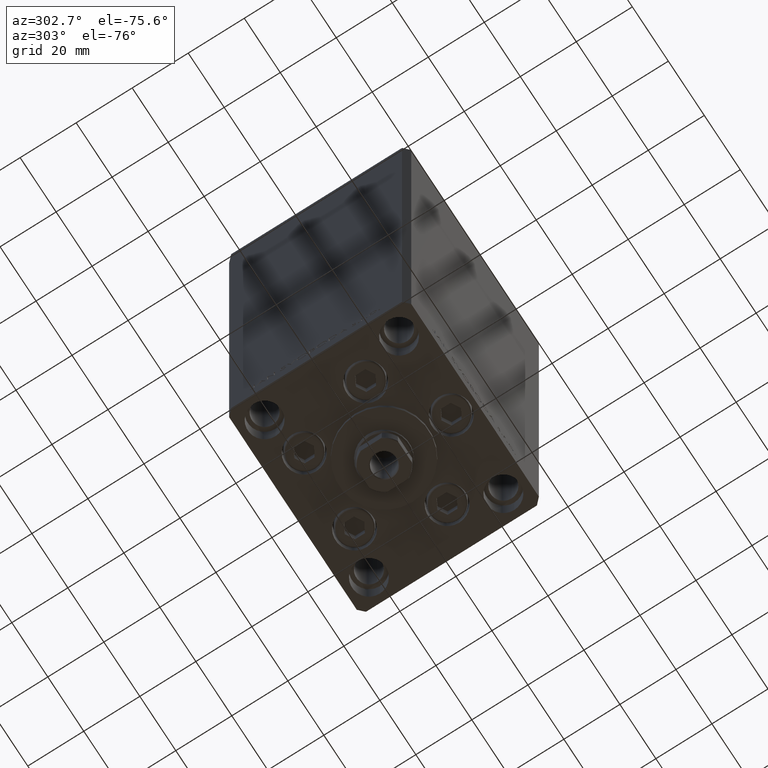
[diagram: clean part render]
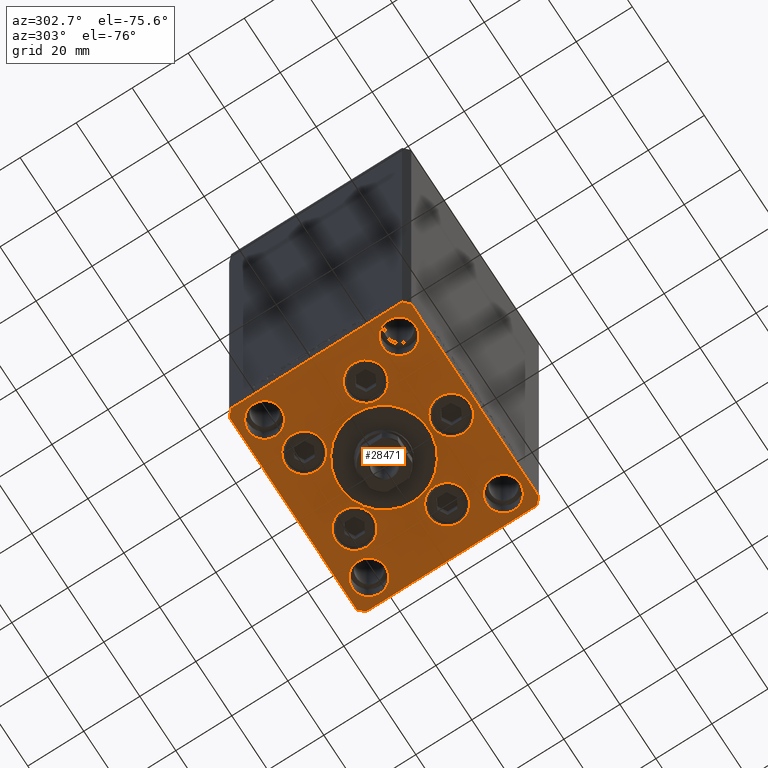
[diagram: same view with one face highlighted and labeled with its STEP entity id]
A machine part, auxiliary view. The second image highlights one B-rep face of the part: STEP entity #28471.
In plain terms, the highlighted planar face has unit normal (0, 0, -1).
Its self-contained STEP definition (entity closure, byte-faithful):
#763 = AXIS2_PLACEMENT_3D ( 'NONE', #42078, #45544, #11639 ) ;
#863 = DIRECTION ( 'NONE',  ( 0.000000000000000000, 0.000000000000000000, 1.000000000000000000 ) ) ;
#870 = AXIS2_PLACEMENT_3D ( 'NONE', #24055, #16398, #39410 ) ;
#966 = AXIS2_PLACEMENT_3D ( 'NONE', #13054, #9332, #1684 ) ;
#1092 = ORIENTED_EDGE ( 'NONE', *, *, #12996, .F. ) ;
#1151 = VERTEX_POINT ( 'NONE', #13524 ) ;
#1212 = LINE ( 'NONE', #35814, #39660 ) ;
#1327 = FACE_BOUND ( 'NONE', #42103, .T. ) ;
#1684 = DIRECTION ( 'NONE',  ( 1.000000000000000000, 0.000000000000000000, 0.000000000000000000 ) ) ;
#1714 = CIRCLE ( 'NONE', #34079, 6.750000000000000000 ) ;
#1755 = EDGE_CURVE ( 'NONE', #9913, #24667, #4765, .T. ) ;
#1759 = EDGE_CURVE ( 'NONE', #16231, #25457, #18866, .T. ) ;
#1934 = EDGE_CURVE ( 'NONE', #15269, #18590, #20439, .T. ) ;
#1941 = DIRECTION ( 'NONE',  ( -0.7071067811865524577, 0.7071067811865426878, 0.000000000000000000 ) ) ;
#1999 = CARTESIAN_POINT ( 'NONE',  ( -15.87741699796953476, -8.000000000000000000, 0.000000000000000000 ) ) ;
#2032 = VECTOR ( 'NONE', #7356, 1000.000000000000000 ) ;
#2096 = CARTESIAN_POINT ( 'NONE',  ( -22.62741699796953299, -8.000000000000000000, 0.000000000000000000 ) ) ;
#2316 = EDGE_CURVE ( 'NONE', #18590, #15269, #32342, .T. ) ;
#2408 = EDGE_CURVE ( 'NONE', #42024, #28574, #28385, .T. ) ;
#2691 = VERTEX_POINT ( 'NONE', #38414 ) ;
#2841 = VERTEX_POINT ( 'NONE', #10662 ) ;
#2854 = DIRECTION ( 'NONE',  ( 0.7071067811865463515, 0.7071067811865487940, 0.000000000000000000 ) ) ;
#2916 = EDGE_CURVE ( 'NONE', #41137, #38193, #12620, .T. ) ;
#3315 = CIRCLE ( 'NONE', #6494, 6.749999999999999112 ) ;
#3660 = ORIENTED_EDGE ( 'NONE', *, *, #2316, .F. ) ;
#3761 = ORIENTED_EDGE ( 'NONE', *, *, #20469, .F. ) ;
#4192 = CARTESIAN_POINT ( 'NONE',  ( -29.00000000000000000, 24.00000000000000711, 0.000000000000000000 ) ) ;
#4641 = CIRCLE ( 'NONE', #39430, 16.00000000000000355 ) ;
#4765 = LINE ( 'NONE', #8468, #14929 ) ;
#4918 = ORIENTED_EDGE ( 'NONE', *, *, #13699, .T. ) ;
#5135 = AXIS2_PLACEMENT_3D ( 'NONE', #23804, #28503, #13423 ) ;
#5272 = FACE_BOUND ( 'NONE', #18589, .T. ) ;
#5569 = VECTOR ( 'NONE', #7960, 1000.000000000000000 ) ;
#5943 = AXIS2_PLACEMENT_3D ( 'NONE', #32585, #47701, #21687 ) ;
#6494 = AXIS2_PLACEMENT_3D ( 'NONE', #17950, #20955, #21195 ) ;
#6661 = VERTEX_POINT ( 'NONE', #23328 ) ;
#6855 = CARTESIAN_POINT ( 'NONE',  ( 29.37741699796954364, -8.000000000000000000, 0.000000000000000000 ) ) ;
#6933 = DIRECTION ( 'NONE',  ( 0.000000000000000000, 1.000000000000000000, 0.000000000000000000 ) ) ;
#7016 = EDGE_CURVE ( 'NONE', #28574, #42024, #1714, .T. ) ;
#7057 = AXIS2_PLACEMENT_3D ( 'NONE', #29385, #15954, #14555 ) ;
#7356 = DIRECTION ( 'NONE',  ( 1.000000000000000000, 1.172770800660376149E-15, 0.000000000000000000 ) ) ;
#7684 = CARTESIAN_POINT ( 'NONE',  ( 13.99106857963324124, 19.50000000000000000, 0.000000000000000000 ) ) ;
#7842 = LINE ( 'NONE', #22918, #2032 ) ;
#7960 = DIRECTION ( 'NONE',  ( -0.7071067811865524577, -0.7071067811865426878, 0.000000000000000000 ) ) ;
#8468 = CARTESIAN_POINT ( 'NONE',  ( -37.50000000000000000, -30.50000000000004263, 0.000000000000000000 ) ) ;
#8735 = VERTEX_POINT ( 'NONE', #40223 ) ;
#8974 = FACE_BOUND ( 'NONE', #11424, .T. ) ;
#9096 = EDGE_LOOP ( 'NONE', ( #43278, #39486, #37572, #45887, #4918, #40196, #44163, #33314 ) ) ;
#9332 = DIRECTION ( 'NONE',  ( 0.000000000000000000, 0.000000000000000000, 1.000000000000000000 ) ) ;
#9395 = AXIS2_PLACEMENT_3D ( 'NONE', #27743, #46819, #43107 ) ;
#9537 = CARTESIAN_POINT ( 'NONE',  ( 35.50000000000001421, -32.49999999999992184, 0.000000000000000000 ) ) ;
#9685 = VECTOR ( 'NONE', #2854, 1000.000000000000000 ) ;
#9913 = VERTEX_POINT ( 'NONE', #12495 ) ;
#10324 = ORIENTED_EDGE ( 'NONE', *, *, #7016, .F. ) ;
#10463 = CARTESIAN_POINT ( 'NONE',  ( 35.00000000000000000, 24.00000000000000355, 0.000000000000000000 ) ) ;
#10477 = CARTESIAN_POINT ( 'NONE',  ( 23.00000000000000711, -23.99999999999999645, 0.000000000000000000 ) ) ;
#10662 = CARTESIAN_POINT ( 'NONE',  ( 16.00000000000000355, -4.979459025271462852E-15, 0.000000000000000000 ) ) ;
#10979 = ORIENTED_EDGE ( 'NONE', *, *, #21661, .F. ) ;
#11181 = CARTESIAN_POINT ( 'NONE',  ( -35.50000000000000711, 32.49999999999997868, 0.000000000000000000 ) ) ;
#11312 = ORIENTED_EDGE ( 'NONE', *, *, #2408, .F. ) ;
#11424 = EDGE_LOOP ( 'NONE', ( #35495, #35403 ) ) ;
#11639 = DIRECTION ( 'NONE',  ( 1.000000000000000000, 0.000000000000000000, 0.000000000000000000 ) ) ;
#12321 = VECTOR ( 'NONE', #6933, 1000.000000000000000 ) ;
#12495 = CARTESIAN_POINT ( 'NONE',  ( -37.50000000000000000, -30.50000000000004263, 0.000000000000000000 ) ) ;
#12620 = CIRCLE ( 'NONE', #763, 6.000000000000001776 ) ;
#12690 = CARTESIAN_POINT ( 'NONE',  ( 37.50000000000000711, 30.50000000000001421, 0.000000000000000000 ) ) ;
#12811 = EDGE_CURVE ( 'NONE', #21511, #2691, #44424, .T. ) ;
#12902 = EDGE_CURVE ( 'NONE', #38193, #41137, #23853, .T. ) ;
#12972 = CIRCLE ( 'NONE', #34277, 6.750000000001552536 ) ;
#12996 = EDGE_CURVE ( 'NONE', #31992, #32758, #3315, .T. ) ;
#13054 = CARTESIAN_POINT ( 'NONE',  ( 29.00000000000000000, 24.00000000000000355, 0.000000000000000000 ) ) ;
#13423 = DIRECTION ( 'NONE',  ( 1.000000000000000000, 0.000000000000000000, 0.000000000000000000 ) ) ;
#13524 = CARTESIAN_POINT ( 'NONE',  ( -35.00000000000000000, 24.00000000000000711, 0.000000000000000000 ) ) ;
#13699 = EDGE_CURVE ( 'NONE', #14513, #20897, #1212, .T. ) ;
#13733 = ORIENTED_EDGE ( 'NONE', *, *, #1934, .F. ) ;
#13985 = EDGE_CURVE ( 'NONE', #45518, #23279, #36723, .T. ) ;
#13997 = DIRECTION ( 'NONE',  ( 0.000000000000000000, 0.000000000000000000, 1.000000000000000000 ) ) ;
#14232 = DIRECTION ( 'NONE',  ( 1.000000000000000000, 0.000000000000000000, 0.000000000000000000 ) ) ;
#14361 = CARTESIAN_POINT ( 'NONE',  ( 37.50000000000000711, -30.49999999999992895, 0.000000000000000000 ) ) ;
#14513 = VERTEX_POINT ( 'NONE', #12690 ) ;
#14555 = DIRECTION ( 'NONE',  ( 1.000000000000000000, 0.000000000000000000, 0.000000000000000000 ) ) ;
#14678 = CARTESIAN_POINT ( 'NONE',  ( -37.50000000000001421, 30.50000000000000000, 0.000000000000000000 ) ) ;
#14709 = CARTESIAN_POINT ( 'NONE',  ( 35.50000000000000000, 32.49999999999999289, 0.000000000000000000 ) ) ;
#14798 = DIRECTION ( 'NONE',  ( 1.000000000000000000, 0.000000000000000000, 0.000000000000000000 ) ) ;
#14808 = CARTESIAN_POINT ( 'NONE',  ( -29.00000000000000000, -23.99999999999999645, 0.000000000000000000 ) ) ;
#14929 = VECTOR ( 'NONE', #34928, 1000.000000000000000 ) ;
#15051 = DIRECTION ( 'NONE',  ( 1.000000000000000000, 0.000000000000000000, 0.000000000000000000 ) ) ;
#15091 = DIRECTION ( 'NONE',  ( 0.000000000000000000, 0.000000000000000000, 1.000000000000000000 ) ) ;
#15098 = DIRECTION ( 'NONE',  ( 0.000000000000000000, 0.000000000000000000, 1.000000000000000000 ) ) ;
#15269 = VERTEX_POINT ( 'NONE', #36242 ) ;
#15534 = CARTESIAN_POINT ( 'NONE',  ( 35.50000000000000000, 32.49999999999999289, 0.000000000000000000 ) ) ;
#15657 = DIRECTION ( 'NONE',  ( 1.000000000000000000, 0.000000000000000000, 0.000000000000000000 ) ) ;
#15710 = CIRCLE ( 'NONE', #44154, 5.999999999999998224 ) ;
#15954 = DIRECTION ( 'NONE',  ( 0.000000000000000000, 0.000000000000000000, 1.000000000000000000 ) ) ;
#15967 = ORIENTED_EDGE ( 'NONE', *, *, #37559, .F. ) ;
#16097 = CARTESIAN_POINT ( 'NONE',  ( -7.241068579633241242, 19.50000000000000000, 0.000000000000000000 ) ) ;
#16231 = VERTEX_POINT ( 'NONE', #6855 ) ;
#16398 = DIRECTION ( 'NONE',  ( 0.000000000000000000, 0.000000000000000000, 1.000000000000000000 ) ) ;
#16620 = CARTESIAN_POINT ( 'NONE',  ( 0.000000000000000000, -6.938893903907228378E-15, 0.000000000000000000 ) ) ;
#16664 = EDGE_LOOP ( 'NONE', ( #20316, #24251 ) ) ;
#16969 = CARTESIAN_POINT ( 'NONE',  ( 0.000000000000000000, -24.00000000000001066, 0.000000000000000000 ) ) ;
#17017 = ORIENTED_EDGE ( 'NONE', *, *, #2916, .F. ) ;
#17124 = FACE_BOUND ( 'NONE', #31421, .T. ) ;
#17226 = CIRCLE ( 'NONE', #19584, 5.999999999999998224 ) ;
#17782 = EDGE_LOOP ( 'NONE', ( #32297, #1092 ) ) ;
#17836 = DIRECTION ( 'NONE',  ( 0.000000000000000000, 0.000000000000000000, 1.000000000000000000 ) ) ;
#17950 = CARTESIAN_POINT ( 'NONE',  ( -22.62741699796953299, -8.000000000000000000, 0.000000000000000000 ) ) ;
#18115 = EDGE_CURVE ( 'NONE', #19503, #8735, #12972, .T. ) ;
#18251 = ORIENTED_EDGE ( 'NONE', *, *, #46114, .F. ) ;
#18546 = CIRCLE ( 'NONE', #5943, 16.00000000000000355 ) ;
#18589 = EDGE_LOOP ( 'NONE', ( #13733, #3660 ) ) ;
#18590 = VERTEX_POINT ( 'NONE', #38093 ) ;
#18866 = CIRCLE ( 'NONE', #9395, 6.750000000000009770 ) ;
#18980 = AXIS2_PLACEMENT_3D ( 'NONE', #26782, #22818, #15657 ) ;
#19497 = DIRECTION ( 'NONE',  ( 1.000000000000000000, 0.000000000000000000, 0.000000000000000000 ) ) ;
#19503 = VERTEX_POINT ( 'NONE', #36214 ) ;
#19584 = AXIS2_PLACEMENT_3D ( 'NONE', #19874, #863, #24319 ) ;
#19793 = CIRCLE ( 'NONE', #870, 6.000000000000001776 ) ;
#19874 = CARTESIAN_POINT ( 'NONE',  ( 29.00000000000000355, -23.99999999999999645, 0.000000000000000000 ) ) ;
#20233 = VECTOR ( 'NONE', #28233, 1000.000000000000000 ) ;
#20316 = ORIENTED_EDGE ( 'NONE', *, *, #45237, .F. ) ;
#20340 = FACE_BOUND ( 'NONE', #16664, .T. ) ;
#20439 = CIRCLE ( 'NONE', #44964, 6.749999999999997335 ) ;
#20469 = EDGE_CURVE ( 'NONE', #41664, #2841, #18546, .T. ) ;
#20618 = DIRECTION ( 'NONE',  ( 0.000000000000000000, 0.000000000000000000, 1.000000000000000000 ) ) ;
#20710 = CARTESIAN_POINT ( 'NONE',  ( 37.50000000000000711, -30.49999999999992895, 0.000000000000000000 ) ) ;
#20799 = EDGE_LOOP ( 'NONE', ( #3761, #29289 ) ) ;
#20897 = VERTEX_POINT ( 'NONE', #14709 ) ;
#20955 = DIRECTION ( 'NONE',  ( 0.000000000000000000, 0.000000000000000000, 1.000000000000000000 ) ) ;
#21195 = DIRECTION ( 'NONE',  ( 1.000000000000000000, 0.000000000000000000, 0.000000000000000000 ) ) ;
#21448 = EDGE_CURVE ( 'NONE', #24667, #45518, #7842, .T. ) ;
#21511 = VERTEX_POINT ( 'NONE', #38272 ) ;
#21555 = CARTESIAN_POINT ( 'NONE',  ( 35.00000000000000000, -23.99999999999999645, 0.000000000000000000 ) ) ;
#21661 = EDGE_CURVE ( 'NONE', #8735, #19503, #31231, .T. ) ;
#21687 = DIRECTION ( 'NONE',  ( 1.000000000000000000, 0.000000000000000000, 0.000000000000000000 ) ) ;
#22358 = EDGE_CURVE ( 'NONE', #25457, #16231, #32817, .T. ) ;
#22399 = EDGE_CURVE ( 'NONE', #23279, #14513, #37607, .T. ) ;
#22818 = DIRECTION ( 'NONE',  ( 0.000000000000000000, 0.000000000000000000, 1.000000000000000000 ) ) ;
#22918 = CARTESIAN_POINT ( 'NONE',  ( -35.50000000000001421, -32.50000000000000711, 0.000000000000000000 ) ) ;
#23279 = VERTEX_POINT ( 'NONE', #20710 ) ;
#23328 = CARTESIAN_POINT ( 'NONE',  ( -35.50000000000000711, 32.49999999999997868, 0.000000000000000000 ) ) ;
#23804 = CARTESIAN_POINT ( 'NONE',  ( 0.000000000000000000, 0.000000000000000000, 0.000000000000000000 ) ) ;
#23853 = CIRCLE ( 'NONE', #966, 6.000000000000001776 ) ;
#24055 = CARTESIAN_POINT ( 'NONE',  ( -29.00000000000000000, 24.00000000000000711, 0.000000000000000000 ) ) ;
#24251 = ORIENTED_EDGE ( 'NONE', *, *, #12811, .F. ) ;
#24279 = DIRECTION ( 'NONE',  ( 0.000000000000000000, 0.000000000000000000, 1.000000000000000000 ) ) ;
#24319 = DIRECTION ( 'NONE',  ( 1.000000000000000000, 0.000000000000000000, 0.000000000000000000 ) ) ;
#24327 = CARTESIAN_POINT ( 'NONE',  ( 15.87741699796952410, -8.000000000000000000, 0.000000000000000000 ) ) ;
#24667 = VERTEX_POINT ( 'NONE', #37896 ) ;
#24911 = AXIS2_PLACEMENT_3D ( 'NONE', #28831, #13997, #43946 ) ;
#25247 = CARTESIAN_POINT ( 'NONE',  ( 29.00000000000000355, -23.99999999999999645, 0.000000000000000000 ) ) ;
#25457 = VERTEX_POINT ( 'NONE', #24327 ) ;
#25463 = EDGE_CURVE ( 'NONE', #32758, #31992, #25667, .T. ) ;
#25667 = CIRCLE ( 'NONE', #42307, 6.749999999999999112 ) ;
#26162 = DIRECTION ( 'NONE',  ( 0.000000000000000000, 0.000000000000000000, 1.000000000000000000 ) ) ;
#26418 = DIRECTION ( 'NONE',  ( -1.000000000000000000, -1.954618001100627573E-16, 0.000000000000000000 ) ) ;
#26782 = CARTESIAN_POINT ( 'NONE',  ( -29.00000000000000000, -23.99999999999999645, 0.000000000000000000 ) ) ;
#26919 = EDGE_CURVE ( 'NONE', #37222, #9913, #46327, .T. ) ;
#27743 = CARTESIAN_POINT ( 'NONE',  ( 22.62741699796953299, -8.000000000000000000, 0.000000000000000000 ) ) ;
#27761 = FACE_BOUND ( 'NONE', #17782, .T. ) ;
#27996 = DIRECTION ( 'NONE',  ( 1.000000000000000000, 0.000000000000000000, 0.000000000000000000 ) ) ;
#28233 = DIRECTION ( 'NONE',  ( 2.275047181608926165E-16, -1.000000000000000000, 0.000000000000000000 ) ) ;
#28385 = CIRCLE ( 'NONE', #41864, 6.750000000000000000 ) ;
#28471 = ADVANCED_FACE ( 'NONE', ( #47320, #43128, #5272, #8974, #35682, #27761, #39649, #1327, #20340, #17124, #35434 ), #43371, .T. ) ;
#28503 = DIRECTION ( 'NONE',  ( -0.000000000000000000, 0.000000000000000000, 1.000000000000000000 ) ) ;
#28574 = VERTEX_POINT ( 'NONE', #38315 ) ;
#28831 = CARTESIAN_POINT ( 'NONE',  ( 0.000000000000000000, -24.00000000000001066, 0.000000000000000000 ) ) ;
#29289 = ORIENTED_EDGE ( 'NONE', *, *, #37275, .F. ) ;
#29300 = ORIENTED_EDGE ( 'NONE', *, *, #12902, .F. ) ;
#29385 = CARTESIAN_POINT ( 'NONE',  ( 13.99106857963324124, 19.50000000000000000, 0.000000000000000000 ) ) ;
#29653 = DIRECTION ( 'NONE',  ( 0.000000000000000000, 0.000000000000000000, 1.000000000000000000 ) ) ;
#31231 = CIRCLE ( 'NONE', #24911, 6.750000000001552536 ) ;
#31421 = EDGE_LOOP ( 'NONE', ( #37785, #15967 ) ) ;
#31491 = VERTEX_POINT ( 'NONE', #10477 ) ;
#31945 = EDGE_CURVE ( 'NONE', #20897, #6661, #38298, .T. ) ;
#31992 = VERTEX_POINT ( 'NONE', #48950 ) ;
#32080 = CARTESIAN_POINT ( 'NONE',  ( 23.00000000000000000, 24.00000000000000355, 0.000000000000000000 ) ) ;
#32297 = ORIENTED_EDGE ( 'NONE', *, *, #25463, .F. ) ;
#32332 = VERTEX_POINT ( 'NONE', #21555 ) ;
#32342 = CIRCLE ( 'NONE', #7057, 6.749999999999997335 ) ;
#32368 = CARTESIAN_POINT ( 'NONE',  ( -16.00000000000000355, -6.938893903907228378E-15, 0.000000000000000000 ) ) ;
#32585 = CARTESIAN_POINT ( 'NONE',  ( 0.000000000000000000, -6.938893903907228378E-15, 0.000000000000000000 ) ) ;
#32758 = VERTEX_POINT ( 'NONE', #1999 ) ;
#32817 = CIRCLE ( 'NONE', #45486, 6.750000000000009770 ) ;
#32935 = ORIENTED_EDGE ( 'NONE', *, *, #46613, .F. ) ;
#33314 = ORIENTED_EDGE ( 'NONE', *, *, #26919, .T. ) ;
#33401 = DIRECTION ( 'NONE',  ( 1.000000000000000000, 0.000000000000000000, 0.000000000000000000 ) ) ;
#33602 = DIRECTION ( 'NONE',  ( 0.000000000000000000, 0.000000000000000000, 1.000000000000000000 ) ) ;
#34079 = AXIS2_PLACEMENT_3D ( 'NONE', #37091, #29653, #41308 ) ;
#34141 = VERTEX_POINT ( 'NONE', #45981 ) ;
#34277 = AXIS2_PLACEMENT_3D ( 'NONE', #16969, #44181, #14232 ) ;
#34928 = DIRECTION ( 'NONE',  ( 0.7071067811865512365, -0.7071067811865439090, 0.000000000000000000 ) ) ;
#35403 = ORIENTED_EDGE ( 'NONE', *, *, #22358, .F. ) ;
#35434 = FACE_OUTER_BOUND ( 'NONE', #9096, .T. ) ;
#35495 = ORIENTED_EDGE ( 'NONE', *, *, #1759, .F. ) ;
#35598 = CIRCLE ( 'NONE', #18980, 6.000000000000001776 ) ;
#35682 = FACE_BOUND ( 'NONE', #38059, .T. ) ;
#35717 = DIRECTION ( 'NONE',  ( 1.000000000000000000, 0.000000000000000000, 0.000000000000000000 ) ) ;
#35814 = CARTESIAN_POINT ( 'NONE',  ( 37.50000000000000711, 30.50000000000001421, 0.000000000000000000 ) ) ;
#36169 = EDGE_CURVE ( 'NONE', #32332, #31491, #17226, .T. ) ;
#36214 = CARTESIAN_POINT ( 'NONE',  ( -6.750000000001552536, -24.00000000000001066, 0.000000000000000000 ) ) ;
#36242 = CARTESIAN_POINT ( 'NONE',  ( 20.74106857963323947, 19.50000000000000000, 0.000000000000000000 ) ) ;
#36405 = CIRCLE ( 'NONE', #48279, 6.000000000000001776 ) ;
#36723 = LINE ( 'NONE', #9537, #9685 ) ;
#36866 = CARTESIAN_POINT ( 'NONE',  ( 22.62741699796953299, -8.000000000000000000, 0.000000000000000000 ) ) ;
#37091 = CARTESIAN_POINT ( 'NONE',  ( -13.99106857963324124, 19.50000000000000000, 0.000000000000000000 ) ) ;
#37222 = VERTEX_POINT ( 'NONE', #14678 ) ;
#37275 = EDGE_CURVE ( 'NONE', #2841, #41664, #4641, .T. ) ;
#37276 = AXIS2_PLACEMENT_3D ( 'NONE', #14808, #33602, #15051 ) ;
#37559 = EDGE_CURVE ( 'NONE', #31491, #32332, #15710, .T. ) ;
#37572 = ORIENTED_EDGE ( 'NONE', *, *, #13985, .T. ) ;
#37607 = LINE ( 'NONE', #14361, #12321 ) ;
#37785 = ORIENTED_EDGE ( 'NONE', *, *, #36169, .F. ) ;
#37896 = CARTESIAN_POINT ( 'NONE',  ( -35.50000000000001421, -32.50000000000000711, 0.000000000000000000 ) ) ;
#38059 = EDGE_LOOP ( 'NONE', ( #10979, #46682 ) ) ;
#38093 = CARTESIAN_POINT ( 'NONE',  ( 7.241068579633242130, 19.50000000000000000, 0.000000000000000000 ) ) ;
#38193 = VERTEX_POINT ( 'NONE', #32080 ) ;
#38272 = CARTESIAN_POINT ( 'NONE',  ( -35.00000000000000000, -23.99999999999999645, 0.000000000000000000 ) ) ;
#38298 = LINE ( 'NONE', #15534, #41626 ) ;
#38315 = CARTESIAN_POINT ( 'NONE',  ( -20.74106857963324302, 19.50000000000000000, 0.000000000000000000 ) ) ;
#38374 = EDGE_LOOP ( 'NONE', ( #11312, #10324 ) ) ;
#38414 = CARTESIAN_POINT ( 'NONE',  ( -23.00000000000000000, -23.99999999999999645, 0.000000000000000000 ) ) ;
#39410 = DIRECTION ( 'NONE',  ( 1.000000000000000000, 0.000000000000000000, 0.000000000000000000 ) ) ;
#39430 = AXIS2_PLACEMENT_3D ( 'NONE', #16620, #24279, #27996 ) ;
#39486 = ORIENTED_EDGE ( 'NONE', *, *, #21448, .T. ) ;
#39643 = EDGE_LOOP ( 'NONE', ( #17017, #29300 ) ) ;
#39649 = FACE_BOUND ( 'NONE', #39643, .T. ) ;
#39660 = VECTOR ( 'NONE', #1941, 1000.000000000000000 ) ;
#40196 = ORIENTED_EDGE ( 'NONE', *, *, #31945, .T. ) ;
#40223 = CARTESIAN_POINT ( 'NONE',  ( 6.750000000001552536, -24.00000000000001066, 0.000000000000000000 ) ) ;
#40263 = EDGE_CURVE ( 'NONE', #6661, #37222, #41866, .T. ) ;
#41137 = VERTEX_POINT ( 'NONE', #10463 ) ;
#41308 = DIRECTION ( 'NONE',  ( 1.000000000000000000, 0.000000000000000000, 0.000000000000000000 ) ) ;
#41310 = DIRECTION ( 'NONE',  ( 0.000000000000000000, 0.000000000000000000, 1.000000000000000000 ) ) ;
#41626 = VECTOR ( 'NONE', #26418, 1000.000000000000000 ) ;
#41664 = VERTEX_POINT ( 'NONE', #32368 ) ;
#41864 = AXIS2_PLACEMENT_3D ( 'NONE', #48698, #26162, #14798 ) ;
#41866 = LINE ( 'NONE', #11181, #5569 ) ;
#42024 = VERTEX_POINT ( 'NONE', #16097 ) ;
#42078 = CARTESIAN_POINT ( 'NONE',  ( 29.00000000000000000, 24.00000000000000355, 0.000000000000000000 ) ) ;
#42103 = EDGE_LOOP ( 'NONE', ( #32935, #18251 ) ) ;
#42307 = AXIS2_PLACEMENT_3D ( 'NONE', #2096, #20618, #35717 ) ;
#43107 = DIRECTION ( 'NONE',  ( 1.000000000000000000, 0.000000000000000000, 0.000000000000000000 ) ) ;
#43128 = FACE_BOUND ( 'NONE', #38374, .T. ) ;
#43278 = ORIENTED_EDGE ( 'NONE', *, *, #1755, .T. ) ;
#43371 = PLANE ( 'NONE',  #5135 ) ;
#43606 = DIRECTION ( 'NONE',  ( 1.000000000000000000, 0.000000000000000000, 0.000000000000000000 ) ) ;
#43946 = DIRECTION ( 'NONE',  ( 1.000000000000000000, 0.000000000000000000, 0.000000000000000000 ) ) ;
#44154 = AXIS2_PLACEMENT_3D ( 'NONE', #25247, #17836, #43606 ) ;
#44163 = ORIENTED_EDGE ( 'NONE', *, *, #40263, .T. ) ;
#44181 = DIRECTION ( 'NONE',  ( 0.000000000000000000, 0.000000000000000000, 1.000000000000000000 ) ) ;
#44309 = DIRECTION ( 'NONE',  ( 1.000000000000000000, 0.000000000000000000, 0.000000000000000000 ) ) ;
#44424 = CIRCLE ( 'NONE', #37276, 6.000000000000001776 ) ;
#44964 = AXIS2_PLACEMENT_3D ( 'NONE', #7684, #15098, #33401 ) ;
#45237 = EDGE_CURVE ( 'NONE', #2691, #21511, #35598, .T. ) ;
#45486 = AXIS2_PLACEMENT_3D ( 'NONE', #36866, #15091, #44309 ) ;
#45518 = VERTEX_POINT ( 'NONE', #47929 ) ;
#45544 = DIRECTION ( 'NONE',  ( 0.000000000000000000, 0.000000000000000000, 1.000000000000000000 ) ) ;
#45887 = ORIENTED_EDGE ( 'NONE', *, *, #22399, .T. ) ;
#45981 = CARTESIAN_POINT ( 'NONE',  ( -23.00000000000000000, 24.00000000000000711, 0.000000000000000000 ) ) ;
#46114 = EDGE_CURVE ( 'NONE', #1151, #34141, #19793, .T. ) ;
#46327 = LINE ( 'NONE', #47057, #20233 ) ;
#46613 = EDGE_CURVE ( 'NONE', #34141, #1151, #36405, .T. ) ;
#46682 = ORIENTED_EDGE ( 'NONE', *, *, #18115, .F. ) ;
#46819 = DIRECTION ( 'NONE',  ( 0.000000000000000000, 0.000000000000000000, 1.000000000000000000 ) ) ;
#47057 = CARTESIAN_POINT ( 'NONE',  ( -37.50000000000001421, 30.50000000000000000, 0.000000000000000000 ) ) ;
#47320 = FACE_BOUND ( 'NONE', #20799, .T. ) ;
#47701 = DIRECTION ( 'NONE',  ( 0.000000000000000000, 0.000000000000000000, 1.000000000000000000 ) ) ;
#47929 = CARTESIAN_POINT ( 'NONE',  ( 35.50000000000001421, -32.49999999999992184, 0.000000000000000000 ) ) ;
#48279 = AXIS2_PLACEMENT_3D ( 'NONE', #4192, #41310, #19497 ) ;
#48698 = CARTESIAN_POINT ( 'NONE',  ( -13.99106857963324124, 19.50000000000000000, 0.000000000000000000 ) ) ;
#48950 = CARTESIAN_POINT ( 'NONE',  ( -29.37741699796953654, -8.000000000000000000, 0.000000000000000000 ) ) ;